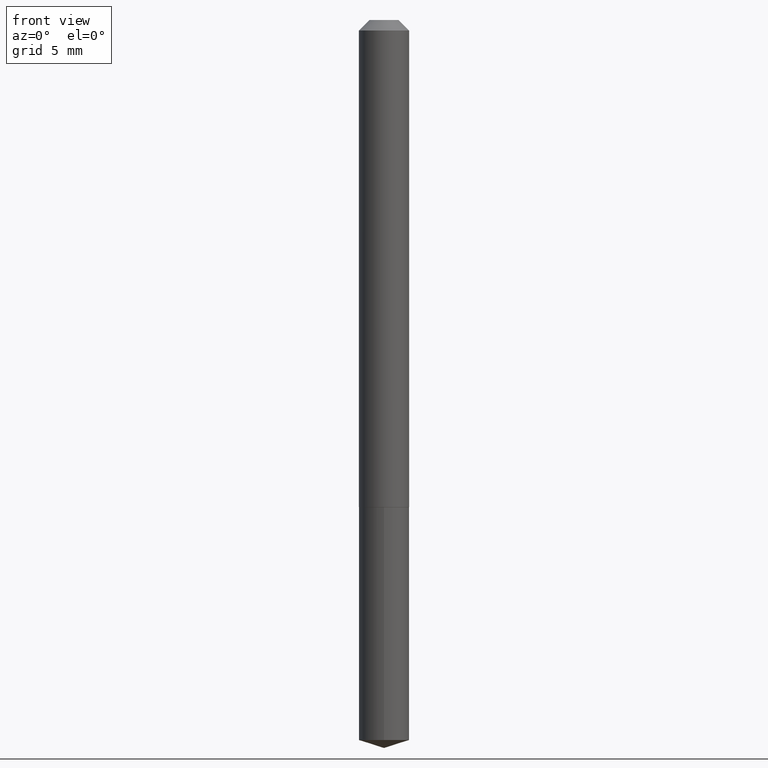
[diagram: clean part render]
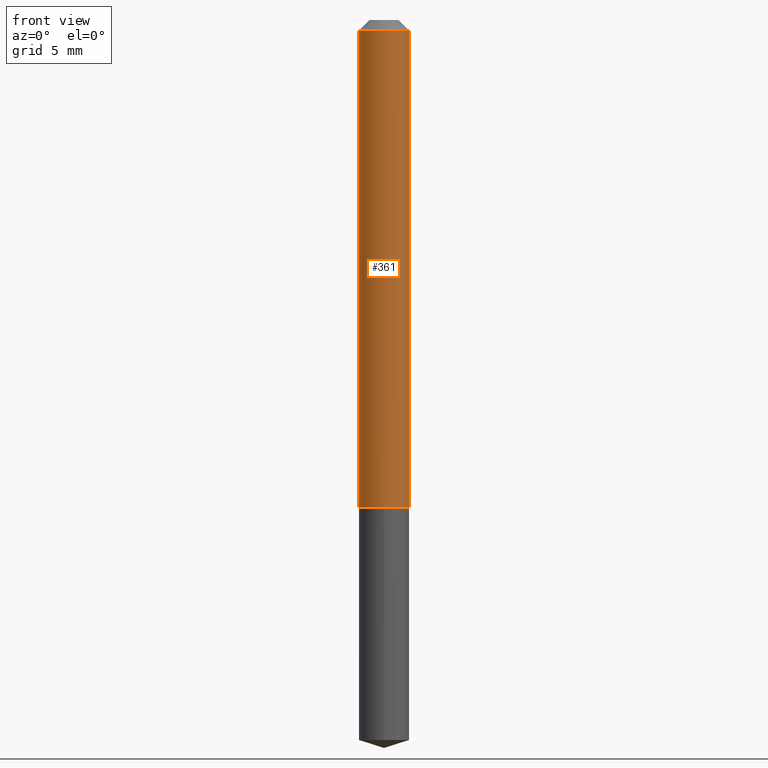
[diagram: same view with one face highlighted and labeled with its STEP entity id]
A machine part, front view. The second image highlights one B-rep face of the part: STEP entity #361.
In plain terms, the highlighted cylindrical surface (edge-blend (fillet) strip) has radius 1.8999 mm, axis along (-0, 0, 1).
Its self-contained STEP definition (entity closure, byte-faithful):
#20 = ORIENTED_EDGE ( 'NONE', *, *, #140, .F. ) ;
#21 = DIRECTION ( 'NONE',  ( -2.445468806185136597E-29, 3.491481338843145583E-15, 1.000000000000000000 ) ) ;
#22 = EDGE_CURVE ( 'NONE', #201, #25, #100, .T. ) ;
#25 = VERTEX_POINT ( 'NONE', #49 ) ;
#49 = CARTESIAN_POINT ( 'NONE',  ( -0.07480000000000000537, -2.051599215161074541E-15, -0.03125000000000020123 ) ) ;
#63 = CARTESIAN_POINT ( 'NONE',  ( 0.07480000000000000537, -6.314344001297818025E-16, -0.03125000000000020123 ) ) ;
#65 = AXIS2_PLACEMENT_3D ( 'NONE', #183, #21, #206 ) ;
#95 = CYLINDRICAL_SURFACE ( 'NONE', #383, 0.07480000000000010252 ) ;
#98 = CARTESIAN_POINT ( 'NONE',  ( 0.000000000000000000, 0.000000000000000000, 0.000000000000000000 ) ) ;
#100 = LINE ( 'NONE', #109, #209 ) ;
#109 = CARTESIAN_POINT ( 'NONE',  ( -0.07480000000000010252, 5.314859663485556675E-16, -3.679363447510674285E-30 ) ) ;
#140 = EDGE_CURVE ( 'NONE', #25, #337, #172, .T. ) ;
#151 = DIRECTION ( 'NONE',  ( -2.445468806185136597E-29, 3.491481338843145583E-15, 1.000000000000000000 ) ) ;
#157 = EDGE_CURVE ( 'NONE', #201, #375, #320, .T. ) ;
#172 = CIRCLE ( 'NONE', #65, 0.07480000000000000537 ) ;
#181 = DIRECTION ( 'NONE',  ( 1.000000000000000000, -6.982962677686271444E-15, 0.000000000000000000 ) ) ;
#183 = CARTESIAN_POINT ( 'NONE',  ( 7.642090019328601786E-31, -1.091087918388490144E-16, -0.03125000000000020123 ) ) ;
#201 = VERTEX_POINT ( 'NONE', #297 ) ;
#206 = DIRECTION ( 'NONE',  ( 1.000000000000000000, -6.982962677686266711E-15, 0.000000000000000000 ) ) ;
#209 = VECTOR ( 'NONE', #219, 39.37007874015748143 ) ;
#212 = CARTESIAN_POINT ( 'NONE',  ( 0.07480000000000010252, -5.223256082909333921E-16, 3.647380228295364368E-30 ) ) ;
#214 = CARTESIAN_POINT ( 'NONE',  ( 0.07480000000000018578, -5.579387179471347865E-15, -1.448400000000000354 ) ) ;
#215 = FACE_OUTER_BOUND ( 'NONE', #319, .T. ) ;
#219 = DIRECTION ( 'NONE',  ( -2.445468806185136877E-29, 3.491481338843145188E-15, 1.000000000000000000 ) ) ;
#249 = ORIENTED_EDGE ( 'NONE', *, *, #274, .T. ) ;
#274 = EDGE_CURVE ( 'NONE', #375, #337, #341, .T. ) ;
#277 = DIRECTION ( 'NONE',  ( 1.000000000000000000, -6.982962677686265922E-15, 4.876176775795935232E-29 ) ) ;
#280 = VECTOR ( 'NONE', #331, 39.37007874015748143 ) ;
#288 = ORIENTED_EDGE ( 'NONE', *, *, #22, .F. ) ;
#297 = CARTESIAN_POINT ( 'NONE',  ( -0.07480000000000018578, -4.525575604831857918E-15, -1.448400000000000354 ) ) ;
#298 = CARTESIAN_POINT ( 'NONE',  ( 3.542017018878552782E-29, -5.057061571180413486E-15, -1.448400000000000354 ) ) ;
#308 = DIRECTION ( 'NONE',  ( -2.445468806185136597E-29, 3.491481338843145583E-15, 1.000000000000000000 ) ) ;
#319 = EDGE_LOOP ( 'NONE', ( #288, #321, #249, #20 ) ) ;
#320 = CIRCLE ( 'NONE', #364, 0.07480000000000018578 ) ;
#321 = ORIENTED_EDGE ( 'NONE', *, *, #157, .T. ) ;
#331 = DIRECTION ( 'NONE',  ( -2.445468806185136877E-29, 3.491481338843145188E-15, 1.000000000000000000 ) ) ;
#337 = VERTEX_POINT ( 'NONE', #63 ) ;
#341 = LINE ( 'NONE', #212, #280 ) ;
#361 = ADVANCED_FACE ( 'NONE', ( #215 ), #95, .T. ) ;
#364 = AXIS2_PLACEMENT_3D ( 'NONE', #298, #151, #181 ) ;
#375 = VERTEX_POINT ( 'NONE', #214 ) ;
#383 = AXIS2_PLACEMENT_3D ( 'NONE', #98, #308, #277 ) ;